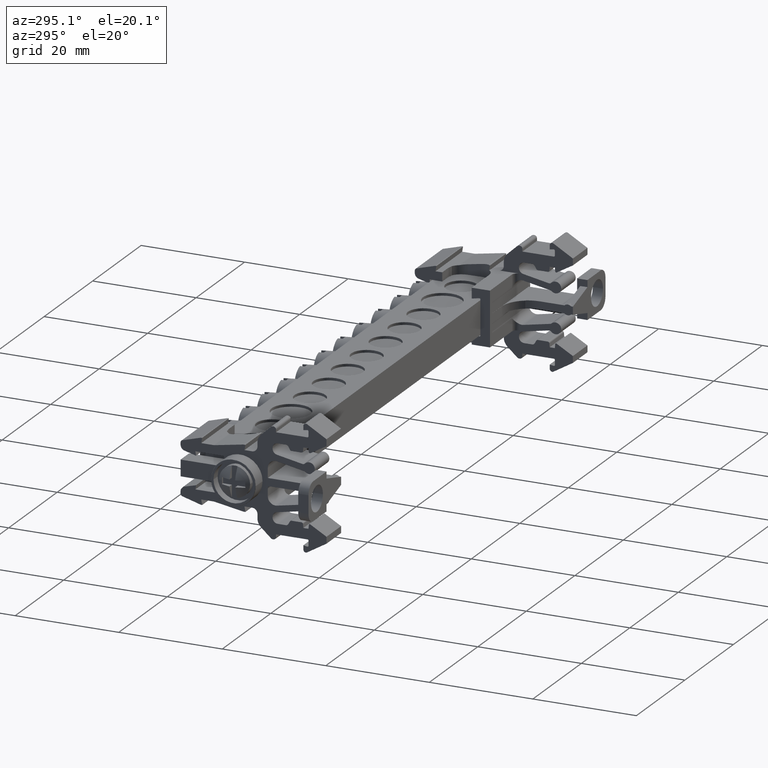
[diagram: clean part render]
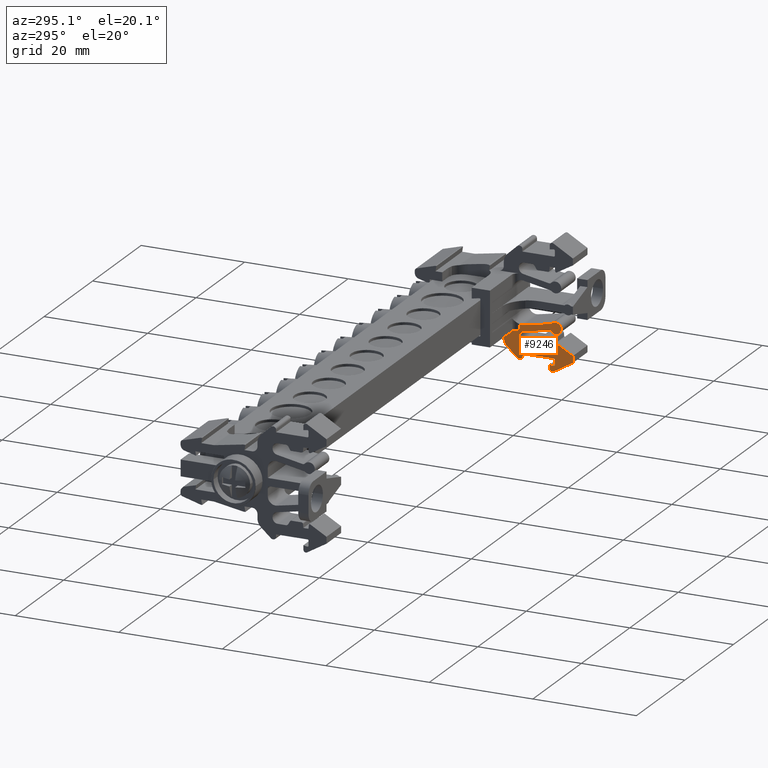
[diagram: same view with one face highlighted and labeled with its STEP entity id]
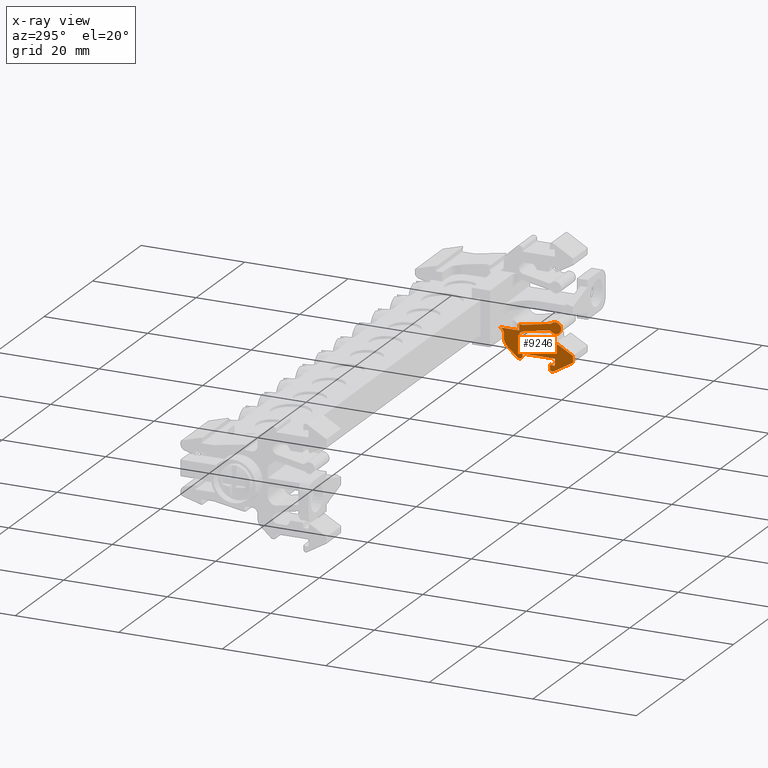
[diagram: x-ray of the same camera — body ghosted, the highlighted face saturated]
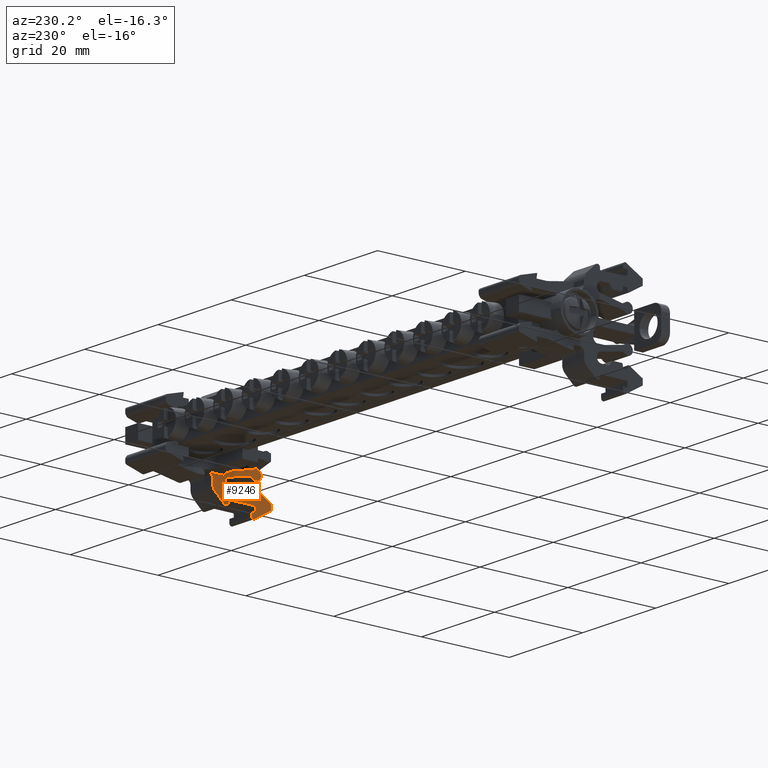
[diagram: same view with one face highlighted and labeled with its STEP entity id]
A machine part, auxiliary view. The second image highlights one B-rep face of the part: STEP entity #9246.
The next image is the same camera in x-ray: the body ghosted, the highlighted face saturated — about 0% of this face is hidden behind the body in this view.
A second angle (auxiliary view) of the same face is appended — the face is thin or edge-on in the first view.
In plain terms, the highlighted planar face has unit normal (-1, 0, -0).
Its self-contained STEP definition (entity closure, byte-faithful):
#28 = EDGE_CURVE ( 'NONE', #11361, #11415, #13684, .T. ) ;
#29 = EDGE_CURVE ( 'NONE', #17247, #17224, #13698, .T. ) ;
#58 = EDGE_CURVE ( 'NONE', #17199, #17249, #13745, .T. ) ;
#107 = EDGE_CURVE ( 'NONE', #11393, #11406, #7497, .T. ) ;
#178 = EDGE_CURVE ( 'NONE', #17224, #17283, #7733, .T. ) ;
#179 = EDGE_CURVE ( 'NONE', #11395, #11413, #13883, .T. ) ;
#240 = EDGE_CURVE ( 'NONE', #11361, #11413, #7934, .T. ) ;
#429 = CARTESIAN_POINT ( 'NONE',  ( -32.50539649368607800, -56.38401611771248400, 92.20986672067817800 ) ) ;
#453 = CARTESIAN_POINT ( 'NONE',  ( -32.50539649368612100, -54.46873406097392200, 91.47141213973561900 ) ) ;
#619 = CARTESIAN_POINT ( 'NONE',  ( -32.50539649368610600, -55.16053997683778900, 88.51944177150646500 ) ) ;
#620 = CARTESIAN_POINT ( 'NONE',  ( -32.50539649368614900, -51.24545583683875800, 88.76944202857318100 ) ) ;
#625 = CARTESIAN_POINT ( 'NONE',  ( -32.50539649368609900, -54.16053975375687900, 88.51944177150646500 ) ) ;
#634 = CARTESIAN_POINT ( 'NONE',  ( -32.50539649368618500, -48.21707803135881000, 89.51944070880627200 ) ) ;
#652 = CARTESIAN_POINT ( 'NONE',  ( -32.50539649368615600, -50.81244316652190200, 88.51944197905764600 ) ) ;
#665 = CARTESIAN_POINT ( 'NONE',  ( -32.50539649368615600, -49.21707812672318000, 88.51944179384035700 ) ) ;
#892 = VECTOR ( 'NONE', #8922, 1000.000000000000200 ) ;
#899 = VECTOR ( 'NONE', #8952, 1000.000000000000000 ) ;
#958 = VECTOR ( 'NONE', #9018, 1000.000000000000100 ) ;
#960 = VECTOR ( 'NONE', #9000, 1000.000000000000000 ) ;
#976 = VECTOR ( 'NONE', #2968, 1000.000000000000100 ) ;
#1001 = VECTOR ( 'NONE', #8843, 1000.000000000000000 ) ;
#1013 = VECTOR ( 'NONE', #8575, 1000.000000000000000 ) ;
#1019 = VECTOR ( 'NONE', #8476, 1000.000000000000000 ) ;
#2086 = DIRECTION ( 'NONE',  ( 1.387778780729502300E-014, -1.000000000000000000, 0.0000000000000000000 ) ) ;
#2524 = DIRECTION ( 'NONE',  ( 1.000000000000000000, 1.101172293446148100E-014, 2.403906012228000300E-015 ) ) ;
#2534 = CARTESIAN_POINT ( 'NONE',  ( -32.50539649368618500, -49.21707785651455000, 89.68061102545723900 ) ) ;
#2536 = DIRECTION ( 'NONE',  ( 1.387778780730128100E-014, -1.000000000000000000, 0.0000000000000000000 ) ) ;
#2633 = DIRECTION ( 'NONE',  ( 1.000000000000000000, 1.101172293446148100E-014, 2.403906012228000300E-015 ) ) ;
#2637 = CARTESIAN_POINT ( 'NONE',  ( -32.50539649368612800, -54.96053997683063100, 86.31144196469094300 ) ) ;
#2639 = DIRECTION ( 'NONE',  ( 0.0000000000000000000, -1.000000000000000000, 0.0000000000000000000 ) ) ;
#2643 = CARTESIAN_POINT ( 'NONE',  ( -32.50539649368616300, -48.79759029975274100, 93.36372230251507200 ) ) ;
#2648 = DIRECTION ( 'NONE',  ( 1.000000000000000000, 1.101172293446148100E-014, 2.403906012228000300E-015 ) ) ;
#2649 = CARTESIAN_POINT ( 'NONE',  ( -32.50539649368614900, -48.24130138547433000, 86.00344249199294200 ) ) ;
#2662 = DIRECTION ( 'NONE',  ( 9.251858538202545600E-015, -1.000000000000000000, 0.0000000000000000000 ) ) ;
#2664 = DIRECTION ( 'NONE',  ( 1.000000000000000000, 1.101172293446148100E-014, 2.403906012228000300E-015 ) ) ;
#2675 = DIRECTION ( 'NONE',  ( 1.000000000000000000, 1.101172293446148100E-014, 2.403906012228000300E-015 ) ) ;
#2688 = DIRECTION ( 'NONE',  ( 1.387778780730638500E-014, -1.000000000000000000, 0.0000000000000000000 ) ) ;
#2689 = DIRECTION ( 'NONE',  ( 1.387779071915610800E-014, -1.000000000000000000, -2.775558143831221700E-014 ) ) ;
#2694 = CARTESIAN_POINT ( 'NONE',  ( -32.50539649368610600, -54.66053991141964700, 84.51944025711434000 ) ) ;
#2706 = CARTESIAN_POINT ( 'NONE',  ( -32.50539649368610600, -54.20129050064644400, 93.38787573525505100 ) ) ;
#2709 = DIRECTION ( 'NONE',  ( 1.000000000000000000, 1.101172293446148100E-014, 2.403906012228000300E-015 ) ) ;
#2711 = DIRECTION ( 'NONE',  ( 1.387778780730426700E-014, -1.000000000000000000, 0.0000000000000000000 ) ) ;
#2760 = LINE ( 'NONE', #2773, #23013 ) ;
#2762 = DIRECTION ( 'NONE',  ( 1.387778780730387900E-014, -1.000000000000000000, 2.775557561460775800E-014 ) ) ;
#2771 = CARTESIAN_POINT ( 'NONE',  ( -32.50539649368618500, -47.29758989823024300, 88.90038993610015400 ) ) ;
#2772 = DIRECTION ( 'NONE',  ( 1.040834085547744000E-014, -1.000000000000000000, 0.0000000000000000000 ) ) ;
#2773 = CARTESIAN_POINT ( 'NONE',  ( -32.50539649368615600, -48.89155226868023600, 68.30975947004789400 ) ) ;
#2779 = DIRECTION ( 'NONE',  ( 1.000000000000000000, 1.101172293446148100E-014, 2.403906012228000300E-015 ) ) ;
#2789 = CARTESIAN_POINT ( 'NONE',  ( -32.50539649368612800, -54.09815130792934900, 91.13575096657986300 ) ) ;
#2793 = DIRECTION ( 'NONE',  ( 1.000000000000000000, 1.101172293446148100E-014, 2.403906012228000300E-015 ) ) ;
#2801 = DIRECTION ( 'NONE',  ( 0.0000000000000000000, -0.0000000000000000000, -1.000000000000000000 ) ) ;
#2968 = DIRECTION ( 'NONE',  ( 0.0000000000000000000, -1.085070571871617100E-006, -0.9999999999994112500 ) ) ;
#2969 = LINE ( 'NONE', #2970, #976 ) ;
#2970 = CARTESIAN_POINT ( 'NONE',  ( -32.50539649368619900, -48.21710104535684100, 68.30976215696927100 ) ) ;
#3062 = CARTESIAN_POINT ( 'NONE',  ( -32.50539649368615600, -48.39155226866205300, 86.00344225067385700 ) ) ;
#3063 = DIRECTION ( 'NONE',  ( 1.000000000000000000, 1.101172293446148100E-014, 2.403906012228000300E-015 ) ) ;
#3141 = EDGE_CURVE ( 'NONE', #15602, #16006, #13964, .T. ) ;
#3145 = EDGE_CURVE ( 'NONE', #15936, #15530, #13951, .T. ) ;
#3181 = EDGE_CURVE ( 'NONE', #15877, #15929, #8076, .T. ) ;
#3182 = EDGE_CURVE ( 'NONE', #15677, #16029, #14034, .T. ) ;
#3321 = AXIS2_PLACEMENT_3D ( 'NONE', #11695, #11723, #11699 ) ;
#3334 = AXIS2_PLACEMENT_3D ( 'NONE', #6428, #6436, #6437 ) ;
#3335 = CIRCLE ( 'NONE', #3334, 1.511999999999999600 ) ;
#3440 = VECTOR ( 'NONE', #24244, 1000.000000000000100 ) ;
#3472 = VECTOR ( 'NONE', #24290, 999.9999999999998900 ) ;
#3531 = VECTOR ( 'NONE', #24382, 1000.000000000000000 ) ;
#3645 = AXIS2_PLACEMENT_3D ( 'NONE', #6859, #6882, #6884 ) ;
#3999 = CIRCLE ( 'NONE', #3321, 1.100000000040436600 ) ;
#4408 = EDGE_CURVE ( 'NONE', #17458, #17575, #5557, .T. ) ;
#4516 = EDGE_CURVE ( 'NONE', #17199, #17575, #5705, .T. ) ;
#4802 = CARTESIAN_POINT ( 'NONE',  ( -32.50539649368612800, -54.98107747304440100, 84.13570119003095700 ) ) ;
#4831 = CARTESIAN_POINT ( 'NONE',  ( -32.50539649368614900, -51.85167338874564500, 89.51944199458755200 ) ) ;
#4868 = CARTESIAN_POINT ( 'NONE',  ( -32.50539649368616300, -49.05806214138420500, 91.88651059802494100 ) ) ;
#4873 = CARTESIAN_POINT ( 'NONE',  ( -32.50539649368614900, -47.90374396131419100, 85.63458631337816500 ) ) ;
#4883 = CARTESIAN_POINT ( 'NONE',  ( -32.50539649368614200, -54.96065835817604000, 86.51144207265751600 ) ) ;
#4899 = CARTESIAN_POINT ( 'NONE',  ( -32.50539649368612800, -55.52140419083057300, 89.37959624491463700 ) ) ;
#4925 = CARTESIAN_POINT ( 'NONE',  ( -32.50539649368618500, -45.94735966521818000, 87.42496514365720400 ) ) ;
#5552 = CARTESIAN_POINT ( 'NONE',  ( -32.50539649368586500, -48.32358989761769400, 90.63749771212405900 ) ) ;
#5557 = LINE ( 'NONE', #5552, #14176 ) ;
#5560 = DIRECTION ( 'NONE',  ( 2.352285033423025200E-015, 1.387778780781406000E-013, -1.000000000000000000 ) ) ;
#5705 = LINE ( 'NONE', #5740, #14248 ) ;
#5740 = CARTESIAN_POINT ( 'NONE',  ( -32.50539649368618500, -49.67006088807096400, 90.73144221564024300 ) ) ;
#5749 = DIRECTION ( 'NONE',  ( -0.0000000000000000000, -1.000000000000000000, -1.383348239789810300E-013 ) ) ;
#6325 = LINE ( 'NONE', #6367, #13833 ) ;
#6339 = DIRECTION ( 'NONE',  ( -1.631586245007670100E-015, -0.8614430768973271300, 0.5078541377853148500 ) ) ;
#6342 = CARTESIAN_POINT ( 'NONE',  ( -32.50539649368614900, -54.98107747304440800, 84.13570119003094300 ) ) ;
#6346 = DIRECTION ( 'NONE',  ( 3.247763491985500000E-028, 1.000000000000000000, 7.639665454295208800E-043 ) ) ;
#6354 = LINE ( 'NONE', #6342, #13738 ) ;
#6367 = CARTESIAN_POINT ( 'NONE',  ( -32.50539649368616300, -50.22354764343187100, 89.51944199458755200 ) ) ;
#6374 = DIRECTION ( 'NONE',  ( -1.924032333060054400E-015, 0.8660254095965300700, 0.4999999899331624100 ) ) ;
#6378 = LINE ( 'NONE', #6393, #13710 ) ;
#6393 = CARTESIAN_POINT ( 'NONE',  ( -32.50539649368615600, -58.64466689906205900, 87.57637972797444100 ) ) ;
#6428 = CARTESIAN_POINT ( 'NONE',  ( -32.50539649368598600, -48.82758989761803300, 93.34647691646763700 ) ) ;
#6436 = DIRECTION ( 'NONE',  ( -1.000000000000000000, -1.100161628464490100E-014, -2.352285033424550400E-015 ) ) ;
#6437 = DIRECTION ( 'NONE',  ( -9.178431089824379200E-015, 1.000000000000000000, 0.0000000000000000000 ) ) ;
#6847 = FACE_OUTER_BOUND ( 'NONE', #18486, .T. ) ;
#6857 = PLANE ( 'NONE',  #3645 ) ;
#6859 = CARTESIAN_POINT ( 'NONE',  ( -32.50539649368619900, -50.22354764343187100, 108.0294437766908700 ) ) ;
#6882 = DIRECTION ( 'NONE',  ( -1.000000000000000000, 3.247763491985500000E-028, -2.352285033423030300E-015 ) ) ;
#6884 = DIRECTION ( 'NONE',  ( -2.352285033423030300E-015, 0.0000000000000000000, 1.000000000000000000 ) ) ;
#7495 = DIRECTION ( 'NONE',  ( -4.009822214888755600E-044, 1.000000000000000000, 1.668044505272630100E-029 ) ) ;
#7497 = LINE ( 'NONE', #7524, #13797 ) ;
#7524 = CARTESIAN_POINT ( 'NONE',  ( -32.50539649368609900, -45.59583688173436400, 88.51944177150646500 ) ) ;
#7709 = CARTESIAN_POINT ( 'NONE',  ( -32.50539649368609900, -48.75965838226467500, 86.25267806405585700 ) ) ;
#7715 = DIRECTION ( 'NONE',  ( 0.0000000000000000000, 0.9848077451303113300, 0.1736482223673815100 ) ) ;
#7717 = DIRECTION ( 'NONE',  ( 1.000000000000000000, 1.101172293446148100E-014, 2.403906012228000300E-015 ) ) ;
#7733 = LINE ( 'NONE', #7709, #13887 ) ;
#7736 = CARTESIAN_POINT ( 'NONE',  ( -32.50539649368615600, -50.81244311099654700, 89.01944198712703800 ) ) ;
#7738 = DIRECTION ( 'NONE',  ( 1.387778780730830900E-014, -1.000000000000000000, 0.0000000000000000000 ) ) ;
#7934 = LINE ( 'NONE', #7942, #13943 ) ;
#7942 = CARTESIAN_POINT ( 'NONE',  ( -32.50539649368615600, -45.74083463743597400, 88.51944140780106800 ) ) ;
#7963 = DIRECTION ( 'NONE',  ( 0.0000000000000000000, -0.9999999999999937800, 1.110506526971359100E-007 ) ) ;
#7981 = DIRECTION ( 'NONE',  ( 0.0000000000000000000, -1.000000000000000000, 4.625929039514235100E-014 ) ) ;
#7982 = CARTESIAN_POINT ( 'NONE',  ( -32.50539649368614900, -51.85167342166703700, 89.21944197968744600 ) ) ;
#7993 = DIRECTION ( 'NONE',  ( 1.000000000000000000, 1.101172293446148100E-014, 2.403906012228000300E-015 ) ) ;
#7998 = DIRECTION ( 'NONE',  ( 1.000000000000000000, 1.101172293446148100E-014, 2.403906012228000300E-015 ) ) ;
#8000 = DIRECTION ( 'NONE',  ( 0.0000000000000000000, -1.000000000000000000, 0.0000000000000000000 ) ) ;
#8005 = CARTESIAN_POINT ( 'NONE',  ( -32.50539649368612800, -53.79815189305063700, 89.21944199457594500 ) ) ;
#8076 = LINE ( 'NONE', #8077, #14045 ) ;
#8077 = CARTESIAN_POINT ( 'NONE',  ( -32.50539649368612100, -58.64466689906204500, 68.30975947004789400 ) ) ;
#8080 = DIRECTION ( 'NONE',  ( 0.0000000000000000000, 0.0000000000000000000, 1.000000000000000000 ) ) ;
#8102 = DIRECTION ( 'NONE',  ( 0.0000000000000000000, -1.000000000000000000, 0.0000000000000000000 ) ) ;
#8112 = CARTESIAN_POINT ( 'NONE',  ( -32.50539649368609900, -55.42140419284024900, 89.20639116298885100 ) ) ;
#8120 = DIRECTION ( 'NONE',  ( 1.000000000000000000, 1.101172293446148100E-014, 2.403906012228000300E-015 ) ) ;
#8239 = EDGE_CURVE ( 'NONE', #15966, #15877, #6354, .T. ) ;
#8241 = EDGE_CURVE ( 'NONE', #15936, #16006, #6325, .T. ) ;
#8254 = EDGE_CURVE ( 'NONE', #15929, #16029, #6378, .T. ) ;
#8271 = EDGE_CURVE ( 'NONE', #17469, #17458, #3335, .T. ) ;
#8375 = EDGE_CURVE ( 'NONE', #15828, #15997, #24235, .T. ) ;
#8384 = EDGE_CURVE ( 'NONE', #16021, #16001, #24287, .T. ) ;
#8412 = EDGE_CURVE ( 'NONE', #15838, #16033, #24377, .T. ) ;
#8427 = LINE ( 'NONE', #8507, #1019 ) ;
#8476 = DIRECTION ( 'NONE',  ( 0.0000000000000000000, -4.932988041073461900E-007, -0.9999999999998783200 ) ) ;
#8507 = CARTESIAN_POINT ( 'NONE',  ( -32.50539649368619200, -45.29760005548984500, 68.30975925139969700 ) ) ;
#8550 = CARTESIAN_POINT ( 'NONE',  ( -32.50539649368609900, -55.16053997683785300, 68.30975947004789400 ) ) ;
#8575 = DIRECTION ( 'NONE',  ( 0.0000000000000000000, -0.0000000000000000000, -1.000000000000000000 ) ) ;
#8576 = LINE ( 'NONE', #8550, #1013 ) ;
#8715 = LINE ( 'NONE', #8841, #1001 ) ;
#8841 = CARTESIAN_POINT ( 'NONE',  ( -32.50539649368611400, -54.16054318366453700, 68.30976119901326600 ) ) ;
#8843 = DIRECTION ( 'NONE',  ( 0.0000000000000000000, -2.018709456975885000E-007, -0.9999999999999796800 ) ) ;
#8922 = DIRECTION ( 'NONE',  ( 0.0000000000000000000, -0.08715550509949665500, -0.9961947188832369600 ) ) ;
#8936 = CARTESIAN_POINT ( 'NONE',  ( -32.50539649368614900, -40.97375220469257300, 70.97831986353142500 ) ) ;
#8943 = LINE ( 'NONE', #8944, #892 ) ;
#8944 = CARTESIAN_POINT ( 'NONE',  ( -32.50539649368609900, -55.85016407138513700, 69.20689438627336200 ) ) ;
#8946 = LINE ( 'NONE', #8936, #899 ) ;
#8952 = DIRECTION ( 'NONE',  ( 0.0000000000000000000, -0.4999997977809528300, 0.8660255205356285300 ) ) ;
#8962 = LINE ( 'NONE', #8981, #960 ) ;
#8981 = CARTESIAN_POINT ( 'NONE',  ( -32.50539649368615600, -45.74087650197697000, 85.50344835873295300 ) ) ;
#9000 = DIRECTION ( 'NONE',  ( 0.0000000000000000000, 0.9999999999973450100, 2.304348000120185200E-006 ) ) ;
#9018 = DIRECTION ( 'NONE',  ( 0.0000000000000000000, -0.08715569266313323600, 0.9961947024735724500 ) ) ;
#9024 = LINE ( 'NONE', #9025, #958 ) ;
#9025 = CARTESIAN_POINT ( 'NONE',  ( -32.50539649368609900, -53.33319914363234200, 67.63282837851845400 ) ) ;
#9246 = ADVANCED_FACE ( 'NONE', ( #6847 ), #6857, .T. ) ;
#9779 = EDGE_CURVE ( 'NONE', #11193, #11221, #3999, .T. ) ;
#11193 = VERTEX_POINT ( 'NONE', #453 ) ;
#11221 = VERTEX_POINT ( 'NONE', #429 ) ;
#11361 = VERTEX_POINT ( 'NONE', #665 ) ;
#11393 = VERTEX_POINT ( 'NONE', #619 ) ;
#11395 = VERTEX_POINT ( 'NONE', #620 ) ;
#11406 = VERTEX_POINT ( 'NONE', #625 ) ;
#11413 = VERTEX_POINT ( 'NONE', #652 ) ;
#11415 = VERTEX_POINT ( 'NONE', #634 ) ;
#11695 = CARTESIAN_POINT ( 'NONE',  ( -32.50539649368609200, -55.28401611767204600, 92.20986672067817800 ) ) ;
#11699 = DIRECTION ( 'NONE',  ( 1.261617073391300200E-014, -1.000000000000000000, 0.0000000000000000000 ) ) ;
#11723 = DIRECTION ( 'NONE',  ( -1.000000000000000000, -1.101172293446148100E-014, -2.403906012228000300E-015 ) ) ;
#11786 = B_SPLINE_CURVE_WITH_KNOTS ( 'NONE', 3,
 ( #12705, #12703, #12694, #12677, #12664, #12708, #12683, #12675 ),
 .UNSPECIFIED., .F., .F.,
 ( 4, 2, 2, 4 ),
 ( 0.0000000000000000000, 0.0002795866936905273500, 0.0005320780052812100000, 0.0007845693168718925900 ),
 .UNSPECIFIED. ) ;
#11813 = CARTESIAN_POINT ( 'NONE',  ( -32.50539649368618500, -45.29758946945384000, 89.76944233654285200 ) ) ;
#11827 = CARTESIAN_POINT ( 'NONE',  ( -32.50539649368609900, -55.16053997683785300, 85.36238032700568100 ) ) ;
#11878 = CARTESIAN_POINT ( 'NONE',  ( -32.50539649368610600, -54.16053975428511800, 85.30035669652926300 ) ) ;
#11931 = CARTESIAN_POINT ( 'NONE',  ( -32.50539649368592900, -48.32358989761787200, 91.92094964559561300 ) ) ;
#11956 = CARTESIAN_POINT ( 'NONE',  ( -32.50539649368603500, -47.65442162130774800, 92.39263196289336100 ) ) ;
#12040 = CARTESIAN_POINT ( 'NONE',  ( -32.50539649368602100, -48.32358989761768700, 90.73144221564065500 ) ) ;
#12356 = CARTESIAN_POINT ( 'NONE',  ( -32.50539649368617000, -44.57063839725194800, 90.73144221564093900 ) ) ;
#12419 = CARTESIAN_POINT ( 'NONE',  ( -32.50539649368609900, -54.92581033235539700, 85.16541881952308300 ) ) ;
#12643 = CARTESIAN_POINT ( 'NONE',  ( -32.50539649368615600, -48.89155226868023600, 86.00344236511178100 ) ) ;
#12657 = CARTESIAN_POINT ( 'NONE',  ( -32.50539649368611400, -55.16053997683785300, 86.31144203717185800 ) ) ;
#12664 = CARTESIAN_POINT ( 'NONE',  ( -32.50539649368529600, -47.98030630622174200, 92.10290320948084300 ) ) ;
#12675 = CARTESIAN_POINT ( 'NONE',  ( -32.50539649368619200, -48.29758989826743200, 91.94950888202996000 ) ) ;
#12677 = CARTESIAN_POINT ( 'NONE',  ( -32.50539649368529600, -47.90908806977284200, 92.15235085621374400 ) ) ;
#12683 = CARTESIAN_POINT ( 'NONE',  ( -32.50539649368529600, -48.21228471264733900, 91.97966881963974100 ) ) ;
#12694 = CARTESIAN_POINT ( 'NONE',  ( -32.50539649368529600, -47.77428544944187600, 92.26315205274099200 ) ) ;
#12703 = CARTESIAN_POINT ( 'NONE',  ( -32.50539649368529600, -47.71070303796401600, 92.32638582886065100 ) ) ;
#12705 = CARTESIAN_POINT ( 'NONE',  ( -32.50539649368603500, -47.65442162130774800, 92.39263196289336100 ) ) ;
#12708 = CARTESIAN_POINT ( 'NONE',  ( -32.50539649368529600, -48.13205051154553600, 92.01662373321144600 ) ) ;
#12713 = CARTESIAN_POINT ( 'NONE',  ( -32.50539649368616300, -49.04342985372211700, 90.66541880934208600 ) ) ;
#12721 = DIRECTION ( 'NONE',  ( 0.0000000000000000000, -0.9817353061411274700, 0.1902519084687104600 ) ) ;
#12745 = LINE ( 'NONE', #12713, #23587 ) ;
#12827 = CARTESIAN_POINT ( 'NONE',  ( -32.50539649368619200, -48.29758989826743200, 91.94950888202996000 ) ) ;
#12845 = CARTESIAN_POINT ( 'NONE',  ( -32.50539649368614200, -54.28811458948072800, 92.89547185873051700 ) ) ;
#12852 = CARTESIAN_POINT ( 'NONE',  ( -32.50539649368615600, -48.89155226868022200, 86.51144221565199600 ) ) ;
#12929 = DIRECTION ( 'NONE',  ( -1.000000000000000000, -1.101172293446148100E-014, -2.403906012228000300E-015 ) ) ;
#12930 = CARTESIAN_POINT ( 'NONE',  ( -32.50539649368614900, -58.64466689906205200, 86.29552938883756500 ) ) ;
#12934 = CARTESIAN_POINT ( 'NONE',  ( -32.50539649368612800, -54.01132721909275600, 91.62815484310411300 ) ) ;
#12943 = DIRECTION ( 'NONE',  ( 1.261617073391300200E-014, -1.000000000000000000, 0.0000000000000000000 ) ) ;
#12955 = CARTESIAN_POINT ( 'NONE',  ( -32.50539649368609200, -55.28401611767204600, 92.20986672067817800 ) ) ;
#12962 = CARTESIAN_POINT ( 'NONE',  ( -32.50539649368618500, -49.04342985372163400, 90.66541880934201500 ) ) ;
#13029 = CARTESIAN_POINT ( 'NONE',  ( -32.50539649368614900, -58.64466689906205900, 87.57637972797444100 ) ) ;
#13037 = CARTESIAN_POINT ( 'NONE',  ( -32.50539649368614200, -53.79815186777101800, 89.51944199458755200 ) ) ;
#13050 = CARTESIAN_POINT ( 'NONE',  ( -32.50539649368609900, -54.53964225596691800, 93.01974791819984000 ) ) ;
#13391 = CARTESIAN_POINT ( 'NONE',  ( -32.50539649368612800, -54.09701030872715700, 89.24558864610679600 ) ) ;
#13436 = CARTESIAN_POINT ( 'NONE',  ( -32.50539649368614900, -48.24130023330052100, 85.50344259688645800 ) ) ;
#13438 = CARTESIAN_POINT ( 'NONE',  ( -32.50539649368619900, -48.21707785647824800, 89.68061024943548900 ) ) ;
#13463 = CARTESIAN_POINT ( 'NONE',  ( -32.50539649368620600, -45.29758989815682900, 88.90038894950255600 ) ) ;
#13536 = CARTESIAN_POINT ( 'NONE',  ( -32.50539649368614900, -51.59186575260238100, 89.36944192647179400 ) ) ;
#13566 = CARTESIAN_POINT ( 'NONE',  ( -32.50539649368615600, -48.39155111648798200, 85.50344225065634900 ) ) ;
#13620 = CARTESIAN_POINT ( 'NONE',  ( -32.50539649368611400, -54.16053991140129400, 84.51944018141267600 ) ) ;
#13649 = CARTESIAN_POINT ( 'NONE',  ( -32.50539649368609900, -55.22216525400049400, 89.22382232052237300 ) ) ;
#13684 = CIRCLE ( 'NONE', #13697, 1.000000000036318900 ) ;
#13697 = AXIS2_PLACEMENT_3D ( 'NONE', #22196, #22183, #22164 ) ;
#13698 = CIRCLE ( 'NONE', #13715, 0.2000000000076732100 ) ;
#13710 = VECTOR ( 'NONE', #6374, 999.9999999999998900 ) ;
#13715 = AXIS2_PLACEMENT_3D ( 'NONE', #22162, #22166, #22160 ) ;
#13738 = VECTOR ( 'NONE', #6339, 1000.000000000000100 ) ;
#13745 = CIRCLE ( 'NONE', #13755, 1.000000000036881200 ) ;
#13755 = AXIS2_PLACEMENT_3D ( 'NONE', #22254, #22255, #22289 ) ;
#13797 = VECTOR ( 'NONE', #7495, 1000.000000000000000 ) ;
#13833 = VECTOR ( 'NONE', #6346, 1000.000000000000000 ) ;
#13883 = CIRCLE ( 'NONE', #13918, 0.5000000000182358600 ) ;
#13887 = VECTOR ( 'NONE', #7715, 1000.000000000000100 ) ;
#13918 = AXIS2_PLACEMENT_3D ( 'NONE', #7736, #7717, #7738 ) ;
#13926 = AXIS2_PLACEMENT_3D ( 'NONE', #7982, #7998, #7981 ) ;
#13943 = VECTOR ( 'NONE', #7963, 1000.000000000000100 ) ;
#13951 = CIRCLE ( 'NONE', #13962, 0.3000000000116104200 ) ;
#13962 = AXIS2_PLACEMENT_3D ( 'NONE', #8005, #7993, #8000 ) ;
#13964 = CIRCLE ( 'NONE', #13926, 0.3000000149001799700 ) ;
#14016 = AXIS2_PLACEMENT_3D ( 'NONE', #8112, #8120, #8102 ) ;
#14034 = CIRCLE ( 'NONE', #14016, 0.2000000000073956500 ) ;
#14045 = VECTOR ( 'NONE', #8080, 1000.000000000000000 ) ;
#14176 = VECTOR ( 'NONE', #5560, 1000.000000000000000 ) ;
#14248 = VECTOR ( 'NONE', #5749, 1000.000000000000000 ) ;
#14418 = EDGE_CURVE ( 'NONE', #11395, #15602, #8946, .T. ) ;
#14419 = EDGE_CURVE ( 'NONE', #15530, #11406, #8943, .T. ) ;
#14430 = EDGE_CURVE ( 'NONE', #15618, #15557, #8962, .T. ) ;
#14441 = EDGE_CURVE ( 'NONE', #11393, #15677, #9024, .T. ) ;
#14458 = EDGE_CURVE ( 'NONE', #17249, #15575, #8427, .T. ) ;
#14467 = EDGE_CURVE ( 'NONE', #15710, #17247, #8576, .T. ) ;
#14475 = EDGE_CURVE ( 'NONE', #17283, #15633, #8715, .T. ) ;
#14499 = EDGE_CURVE ( 'NONE', #15571, #11415, #2969, .T. ) ;
#14533 = EDGE_CURVE ( 'NONE', #15718, #15618, #23307, .T. ) ;
#14673 = EDGE_CURVE ( 'NONE', #15571, #15918, #22858, .T. ) ;
#14724 = EDGE_CURVE ( 'NONE', #15997, #15839, #22969, .T. ) ;
#14725 = EDGE_CURVE ( 'NONE', #16033, #15710, #22949, .T. ) ;
#14727 = EDGE_CURVE ( 'NONE', #15557, #16001, #22970, .T. ) ;
#14728 = EDGE_CURVE ( 'NONE', #15966, #15633, #22965, .T. ) ;
#14732 = EDGE_CURVE ( 'NONE', #15944, #15828, #22959, .T. ) ;
#14760 = EDGE_CURVE ( 'NONE', #15881, #11193, #23040, .T. ) ;
#14763 = EDGE_CURVE ( 'NONE', #16021, #15575, #22983, .T. ) ;
#14767 = EDGE_CURVE ( 'NONE', #15838, #15718, #2760, .T. ) ;
#15530 = VERTEX_POINT ( 'NONE', #13391 ) ;
#15557 = VERTEX_POINT ( 'NONE', #13436 ) ;
#15571 = VERTEX_POINT ( 'NONE', #13438 ) ;
#15575 = VERTEX_POINT ( 'NONE', #13463 ) ;
#15602 = VERTEX_POINT ( 'NONE', #13536 ) ;
#15618 = VERTEX_POINT ( 'NONE', #13566 ) ;
#15633 = VERTEX_POINT ( 'NONE', #13620 ) ;
#15677 = VERTEX_POINT ( 'NONE', #13649 ) ;
#15710 = VERTEX_POINT ( 'NONE', #12657 ) ;
#15718 = VERTEX_POINT ( 'NONE', #12643 ) ;
#15753 = EDGE_CURVE ( 'NONE', #17469, #15839, #11786, .T. ) ;
#15782 = EDGE_CURVE ( 'NONE', #15918, #15881, #12745, .T. ) ;
#15828 = VERTEX_POINT ( 'NONE', #12845 ) ;
#15838 = VERTEX_POINT ( 'NONE', #12852 ) ;
#15839 = VERTEX_POINT ( 'NONE', #12827 ) ;
#15871 = EDGE_CURVE ( 'NONE', #11221, #15944, #23660, .T. ) ;
#15877 = VERTEX_POINT ( 'NONE', #12930 ) ;
#15881 = VERTEX_POINT ( 'NONE', #12934 ) ;
#15918 = VERTEX_POINT ( 'NONE', #12962 ) ;
#15929 = VERTEX_POINT ( 'NONE', #13029 ) ;
#15936 = VERTEX_POINT ( 'NONE', #13037 ) ;
#15944 = VERTEX_POINT ( 'NONE', #13050 ) ;
#15966 = VERTEX_POINT ( 'NONE', #4802 ) ;
#15997 = VERTEX_POINT ( 'NONE', #4868 ) ;
#16001 = VERTEX_POINT ( 'NONE', #4873 ) ;
#16006 = VERTEX_POINT ( 'NONE', #4831 ) ;
#16021 = VERTEX_POINT ( 'NONE', #4925 ) ;
#16029 = VERTEX_POINT ( 'NONE', #4899 ) ;
#16033 = VERTEX_POINT ( 'NONE', #4883 ) ;
#16466 = ORIENTED_EDGE ( 'NONE', *, *, #15782, .T. ) ;
#16483 = ORIENTED_EDGE ( 'NONE', *, *, #14499, .F. ) ;
#16491 = ORIENTED_EDGE ( 'NONE', *, *, #15871, .T. ) ;
#16497 = ORIENTED_EDGE ( 'NONE', *, *, #28, .T. ) ;
#16517 = ORIENTED_EDGE ( 'NONE', *, *, #14418, .F. ) ;
#16519 = ORIENTED_EDGE ( 'NONE', *, *, #14724, .T. ) ;
#16522 = ORIENTED_EDGE ( 'NONE', *, *, #8271, .T. ) ;
#16524 = ORIENTED_EDGE ( 'NONE', *, *, #14475, .T. ) ;
#16528 = ORIENTED_EDGE ( 'NONE', *, *, #14725, .T. ) ;
#16529 = ORIENTED_EDGE ( 'NONE', *, *, #8384, .T. ) ;
#16531 = ORIENTED_EDGE ( 'NONE', *, *, #4408, .T. ) ;
#16532 = ORIENTED_EDGE ( 'NONE', *, *, #9779, .T. ) ;
#16533 = ORIENTED_EDGE ( 'NONE', *, *, #8375, .T. ) ;
#16534 = ORIENTED_EDGE ( 'NONE', *, *, #179, .T. ) ;
#16538 = ORIENTED_EDGE ( 'NONE', *, *, #14732, .T. ) ;
#16545 = ORIENTED_EDGE ( 'NONE', *, *, #15753, .F. ) ;
#16546 = ORIENTED_EDGE ( 'NONE', *, *, #14430, .F. ) ;
#16547 = ORIENTED_EDGE ( 'NONE', *, *, #29, .T. ) ;
#16558 = ORIENTED_EDGE ( 'NONE', *, *, #58, .T. ) ;
#16559 = ORIENTED_EDGE ( 'NONE', *, *, #3141, .F. ) ;
#16562 = ORIENTED_EDGE ( 'NONE', *, *, #4516, .F. ) ;
#16575 = ORIENTED_EDGE ( 'NONE', *, *, #14760, .T. ) ;
#16578 = ORIENTED_EDGE ( 'NONE', *, *, #8241, .T. ) ;
#16579 = ORIENTED_EDGE ( 'NONE', *, *, #14673, .T. ) ;
#16581 = ORIENTED_EDGE ( 'NONE', *, *, #240, .F. ) ;
#16591 = ORIENTED_EDGE ( 'NONE', *, *, #107, .T. ) ;
#16593 = ORIENTED_EDGE ( 'NONE', *, *, #178, .T. ) ;
#16594 = ORIENTED_EDGE ( 'NONE', *, *, #14441, .F. ) ;
#16598 = ORIENTED_EDGE ( 'NONE', *, *, #8254, .T. ) ;
#16602 = ORIENTED_EDGE ( 'NONE', *, *, #3181, .T. ) ;
#16604 = ORIENTED_EDGE ( 'NONE', *, *, #14533, .F. ) ;
#16605 = ORIENTED_EDGE ( 'NONE', *, *, #8239, .T. ) ;
#16607 = ORIENTED_EDGE ( 'NONE', *, *, #14458, .T. ) ;
#16608 = ORIENTED_EDGE ( 'NONE', *, *, #14728, .F. ) ;
#16610 = ORIENTED_EDGE ( 'NONE', *, *, #3182, .F. ) ;
#16611 = ORIENTED_EDGE ( 'NONE', *, *, #14763, .F. ) ;
#16614 = ORIENTED_EDGE ( 'NONE', *, *, #14727, .F. ) ;
#16621 = ORIENTED_EDGE ( 'NONE', *, *, #14419, .F. ) ;
#16625 = ORIENTED_EDGE ( 'NONE', *, *, #14767, .F. ) ;
#16627 = ORIENTED_EDGE ( 'NONE', *, *, #8412, .T. ) ;
#16628 = ORIENTED_EDGE ( 'NONE', *, *, #14467, .T. ) ;
#16630 = ORIENTED_EDGE ( 'NONE', *, *, #3145, .F. ) ;
#17199 = VERTEX_POINT ( 'NONE', #12356 ) ;
#17224 = VERTEX_POINT ( 'NONE', #12419 ) ;
#17247 = VERTEX_POINT ( 'NONE', #11827 ) ;
#17249 = VERTEX_POINT ( 'NONE', #11813 ) ;
#17283 = VERTEX_POINT ( 'NONE', #11878 ) ;
#17458 = VERTEX_POINT ( 'NONE', #11931 ) ;
#17469 = VERTEX_POINT ( 'NONE', #11956 ) ;
#17575 = VERTEX_POINT ( 'NONE', #12040 ) ;
#18486 = EDGE_LOOP ( 'NONE', ( #16578, #16559, #16517, #16534, #16581, #16497, #16483, #16579, #16466, #16575, #16532, #16491, #16538, #16533, #16519, #16545, #16522, #16531, #16562, #16558, #16607, #16611, #16529, #16614, #16546, #16604, #16625, #16627, #16528, #16628, #16547, #16593, #16524, #16608, #16605, #16602, #16598, #16610, #16594, #16591, #16621, #16630 ) ) ;
#22160 = DIRECTION ( 'NONE',  ( 0.0000000000000000000, -1.000000000000000000, 0.0000000000000000000 ) ) ;
#22162 = CARTESIAN_POINT ( 'NONE',  ( -32.50539649368609900, -54.96053997683024800, 85.36238036855674200 ) ) ;
#22164 = DIRECTION ( 'NONE',  ( 1.387778780731043000E-014, -1.000000000000000000, 0.0000000000000000000 ) ) ;
#22166 = DIRECTION ( 'NONE',  ( 1.000000000000000000, 1.101172293446148100E-014, 2.403906012228000300E-015 ) ) ;
#22183 = DIRECTION ( 'NONE',  ( 1.000000000000000000, 1.101172293446148100E-014, 2.403906012228000300E-015 ) ) ;
#22196 = CARTESIAN_POINT ( 'NONE',  ( -32.50539649368615600, -49.21707803139413800, 89.51944179387686500 ) ) ;
#22254 = CARTESIAN_POINT ( 'NONE',  ( -32.50539649368618500, -44.29758946941709000, 89.76944206850895100 ) ) ;
#22255 = DIRECTION ( 'NONE',  ( 1.000000000000000000, 1.101172293446148100E-014, 2.403906012228000300E-015 ) ) ;
#22289 = DIRECTION ( 'NONE',  ( 1.387778780730262800E-014, -1.000000000000000000, -1.387778780730262800E-014 ) ) ;
#22858 = CIRCLE ( 'NONE', #22889, 1.000000000036978200 ) ;
#22889 = AXIS2_PLACEMENT_3D ( 'NONE', #2534, #2524, #2536 ) ;
#22938 = AXIS2_PLACEMENT_3D ( 'NONE', #2694, #2709, #2711 ) ;
#22949 = CIRCLE ( 'NONE', #22979, 0.2000000000074164700 ) ;
#22952 = AXIS2_PLACEMENT_3D ( 'NONE', #2706, #2675, #2688 ) ;
#22957 = AXIS2_PLACEMENT_3D ( 'NONE', #2643, #2633, #2662 ) ;
#22959 = CIRCLE ( 'NONE', #22952, 0.5000000000183052500 ) ;
#22965 = CIRCLE ( 'NONE', #22938, 0.5000000000183815200 ) ;
#22969 = CIRCLE ( 'NONE', #22957, 1.500000000055193200 ) ;
#22970 = CIRCLE ( 'NONE', #22971, 0.4999998951078846200 ) ;
#22971 = AXIS2_PLACEMENT_3D ( 'NONE', #2649, #2664, #2689 ) ;
#22979 = AXIS2_PLACEMENT_3D ( 'NONE', #2637, #2648, #2639 ) ;
#22983 = CIRCLE ( 'NONE', #23023, 2.000000000073672200 ) ;
#23013 = VECTOR ( 'NONE', #2801, 1000.000000000000000 ) ;
#23023 = AXIS2_PLACEMENT_3D ( 'NONE', #2771, #2793, #2772 ) ;
#23040 = CIRCLE ( 'NONE', #23042, 0.5000000000183955100 ) ;
#23042 = AXIS2_PLACEMENT_3D ( 'NONE', #2789, #2779, #2762 ) ;
#23307 = CIRCLE ( 'NONE', #23323, 0.5000000000187145900 ) ;
#23323 = AXIS2_PLACEMENT_3D ( 'NONE', #3062, #3063, #2086 ) ;
#23587 = VECTOR ( 'NONE', #12721, 1000.000000000000100 ) ;
#23656 = AXIS2_PLACEMENT_3D ( 'NONE', #12955, #12929, #12943 ) ;
#23660 = CIRCLE ( 'NONE', #23656, 1.100000000040436600 ) ;
#24233 = CARTESIAN_POINT ( 'NONE',  ( -32.50539649368617000, -54.28811458948240400, 92.89547185873081500 ) ) ;
#24235 = LINE ( 'NONE', #24233, #3440 ) ;
#24244 = DIRECTION ( 'NONE',  ( 0.0000000000000000000, 0.9818954940040626200, -0.1894234379756576100 ) ) ;
#24287 = LINE ( 'NONE', #24291, #3472 ) ;
#24290 = DIRECTION ( 'NONE',  ( 2.616514486995187400E-015, -0.7377123847283526500, -0.6751151290101615700 ) ) ;
#24291 = CARTESIAN_POINT ( 'NONE',  ( -32.50539649368615600, -45.94735969027624400, 87.42496512072538900 ) ) ;
#24343 = CARTESIAN_POINT ( 'NONE',  ( -32.50539649368615600, -50.22354764343187100, 86.51144221565199600 ) ) ;
#24377 = LINE ( 'NONE', #24343, #3531 ) ;
#24382 = DIRECTION ( 'NONE',  ( -3.247763491985500000E-028, -1.000000000000000000, -7.639665454295208800E-043 ) ) ;